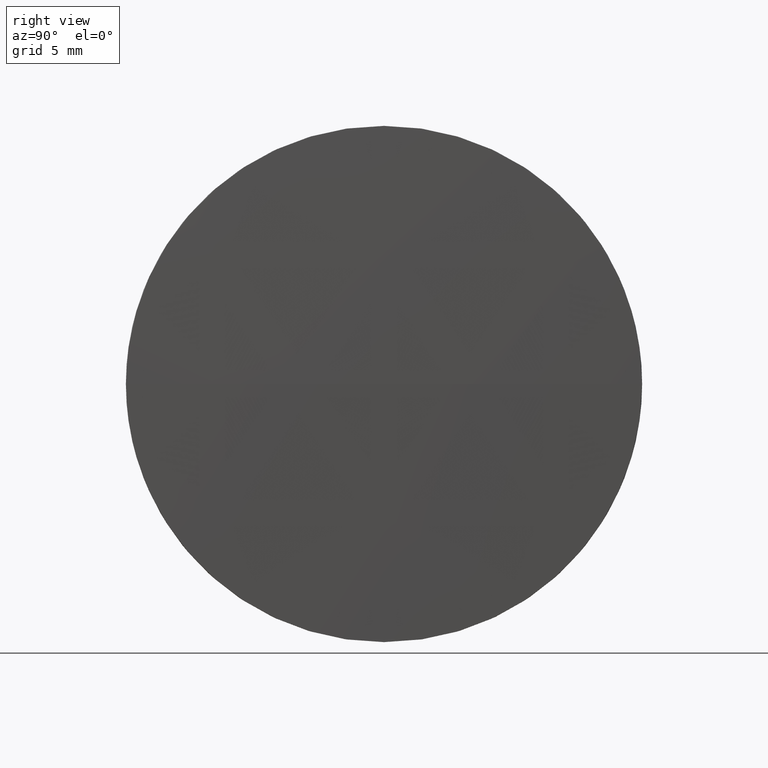
[diagram: clean part render]
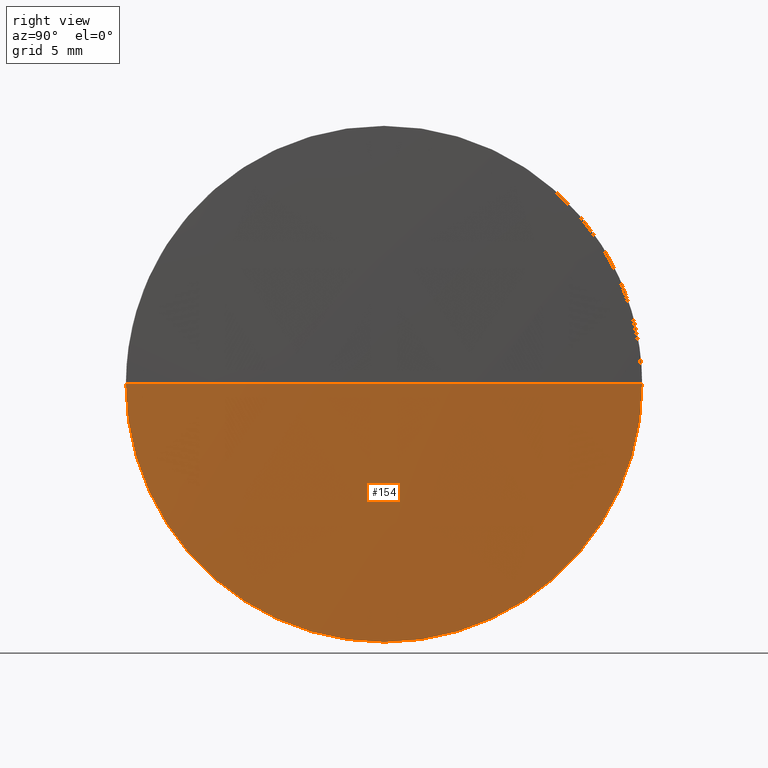
[diagram: same view with one face highlighted and labeled with its STEP entity id]
A machine part, right view. The second image highlights one B-rep face of the part: STEP entity #154.
In plain terms, the highlighted spherical surface has radius 520.908 mm.
Its self-contained STEP definition (entity closure, byte-faithful):
#7 = ORIENTED_EDGE ( 'NONE', *, *, #98, .F. ) ;
#8 = DIRECTION ( 'NONE',  ( 0.0000000000000000000, 1.000000000000000000, 0.0000000000000000000 ) ) ;
#9 = CIRCLE ( 'NONE', #25, 12.50000000000000400 ) ;
#10 = VERTEX_POINT ( 'NONE', #57 ) ;
#19 = CARTESIAN_POINT ( 'NONE',  ( -56.64542660467248000, 60.99120596054969900, 0.0000000000000000000 ) ) ;
#21 = CARTESIAN_POINT ( 'NONE',  ( 464.1129067286656200, 60.99120596055025300, -12.50000000000000400 ) ) ;
#23 = EDGE_CURVE ( 'NONE', #31, #108, #174, .T. ) ;
#25 = AXIS2_PLACEMENT_3D ( 'NONE', #128, #161, #74 ) ;
#30 = DIRECTION ( 'NONE',  ( -0.0000000000000000000, 0.0000000000000000000, 1.000000000000000000 ) ) ;
#31 = VERTEX_POINT ( 'NONE', #115 ) ;
#42 = DIRECTION ( 'NONE',  ( 0.0000000000000000000, 1.224646799147353200E-016, -1.000000000000000000 ) ) ;
#43 = CIRCLE ( 'NONE', #93, 520.9083333333380800 ) ;
#48 = DIRECTION ( 'NONE',  ( 0.0000000000000000000, 0.0000000000000000000, 1.000000000000000000 ) ) ;
#57 = CARTESIAN_POINT ( 'NONE',  ( 464.1129067286656200, 73.49120596054936500, 0.0000000000000000000 ) ) ;
#59 = CARTESIAN_POINT ( 'NONE',  ( 464.1129067286656200, 48.49120596055059500, -1.530808498934081900E-015 ) ) ;
#61 = EDGE_CURVE ( 'NONE', #31, #10, #43, .T. ) ;
#62 = DIRECTION ( 'NONE',  ( -0.0000000000000000000, 0.0000000000000000000, -1.000000000000000000 ) ) ;
#72 = ORIENTED_EDGE ( 'NONE', *, *, #167, .F. ) ;
#74 = DIRECTION ( 'NONE',  ( 0.0000000000000000000, 0.0000000000000000000, 1.000000000000000000 ) ) ;
#91 = DIRECTION ( 'NONE',  ( -1.000000000000000000, -0.0000000000000000000, -0.0000000000000000000 ) ) ;
#93 = AXIS2_PLACEMENT_3D ( 'NONE', #19, #30, #173 ) ;
#96 = FACE_OUTER_BOUND ( 'NONE', #142, .T. ) ;
#97 = AXIS2_PLACEMENT_3D ( 'NONE', #136, #91, #48 ) ;
#98 = EDGE_CURVE ( 'NONE', #141, #108, #9, .T. ) ;
#103 = CARTESIAN_POINT ( 'NONE',  ( -56.64542660467248000, 60.99120596054969900, 0.0000000000000000000 ) ) ;
#108 = VERTEX_POINT ( 'NONE', #59 ) ;
#109 = AXIS2_PLACEMENT_3D ( 'NONE', #133, #62, #8 ) ;
#115 = CARTESIAN_POINT ( 'NONE',  ( 464.2629067286656000, 60.99120596054973500, 0.0000000000000000000 ) ) ;
#117 = CIRCLE ( 'NONE', #97, 12.50000000000000400 ) ;
#128 = CARTESIAN_POINT ( 'NONE',  ( 464.1129067286656200, 60.99120596055025300, 0.0000000000000000000 ) ) ;
#133 = CARTESIAN_POINT ( 'NONE',  ( -56.64542660467248000, 60.99120596054969900, 0.0000000000000000000 ) ) ;
#136 = CARTESIAN_POINT ( 'NONE',  ( 464.1129067286656200, 60.99120596055025300, 0.0000000000000000000 ) ) ;
#141 = VERTEX_POINT ( 'NONE', #21 ) ;
#142 = EDGE_LOOP ( 'NONE', ( #150, #182, #7, #72 ) ) ;
#150 = ORIENTED_EDGE ( 'NONE', *, *, #61, .F. ) ;
#151 = SPHERICAL_SURFACE ( 'NONE', #109, 520.9083333333380800 ) ;
#154 = ADVANCED_FACE ( 'NONE', ( #96 ), #151, .T. ) ;
#158 = AXIS2_PLACEMENT_3D ( 'NONE', #103, #42, #159 ) ;
#159 = DIRECTION ( 'NONE',  ( 0.0000000000000000000, 1.000000000000000000, 1.224646799147353200E-016 ) ) ;
#161 = DIRECTION ( 'NONE',  ( -1.000000000000000000, -0.0000000000000000000, -0.0000000000000000000 ) ) ;
#167 = EDGE_CURVE ( 'NONE', #10, #141, #117, .T. ) ;
#173 = DIRECTION ( 'NONE',  ( 1.000000000000000000, 0.0000000000000000000, 0.0000000000000000000 ) ) ;
#174 = CIRCLE ( 'NONE', #158, 520.9083333333380800 ) ;
#182 = ORIENTED_EDGE ( 'NONE', *, *, #23, .T. ) ;